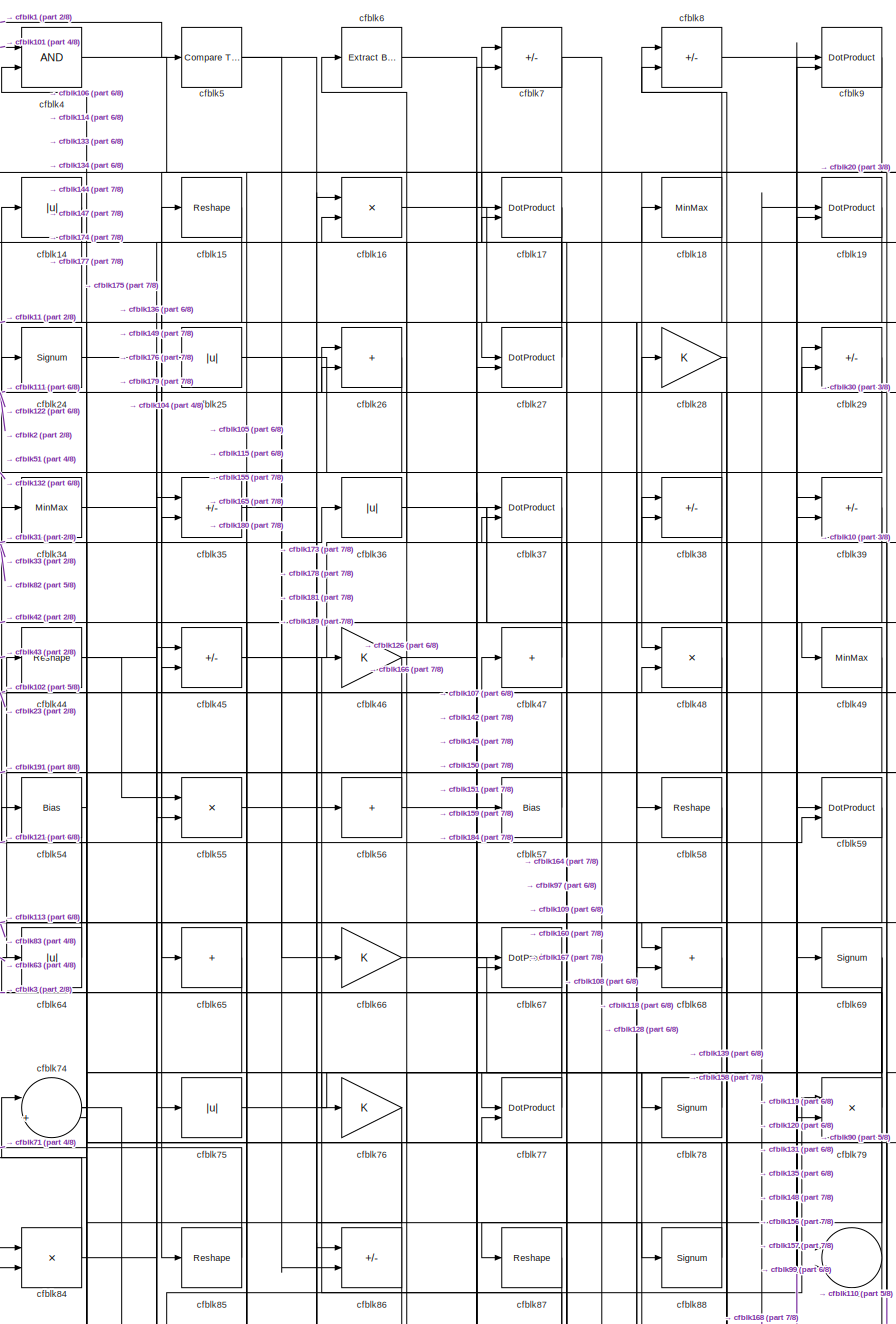
[diagram: root canvas - part 1/8, top center region]
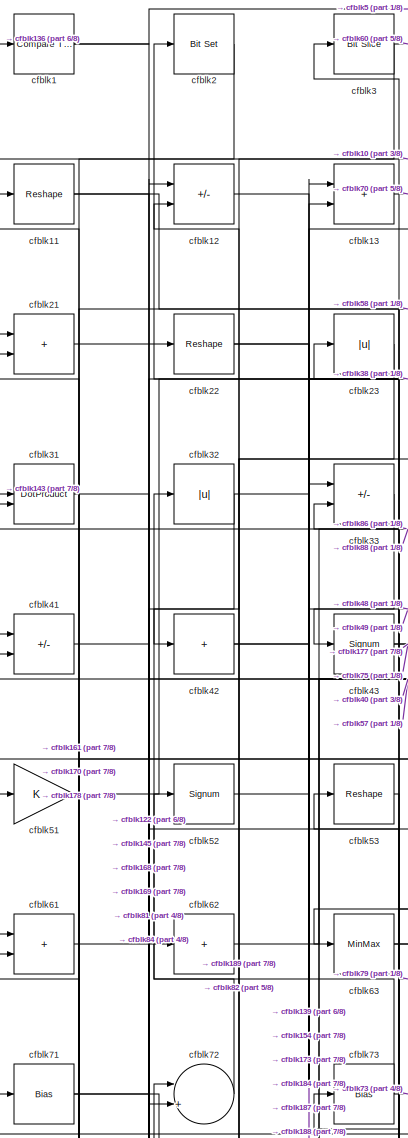
[diagram: root canvas - part 2/8, top left region]
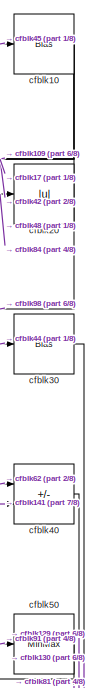
[diagram: root canvas - part 3/8, top right region]
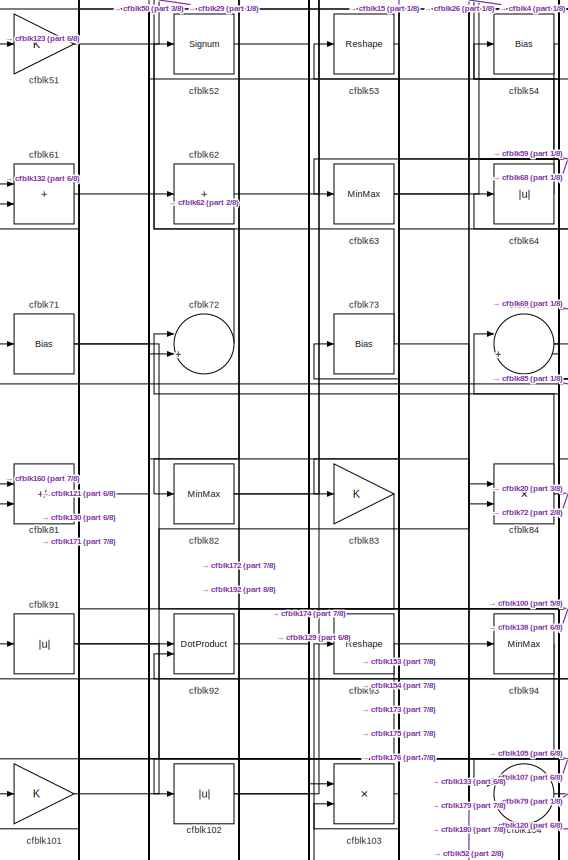
[diagram: root canvas - part 4/8, middle left region]
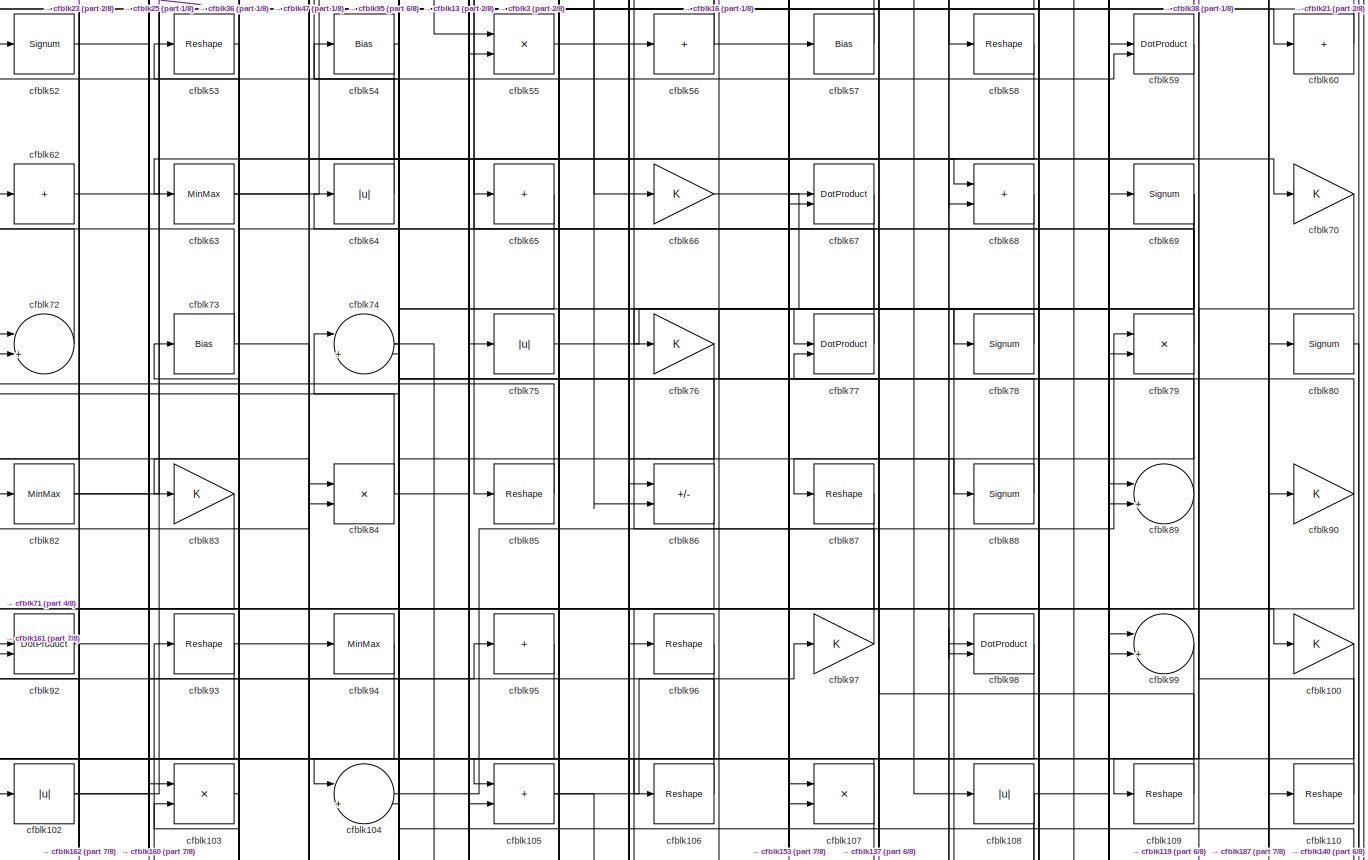
[diagram: root canvas - part 5/8, full width, middle band]
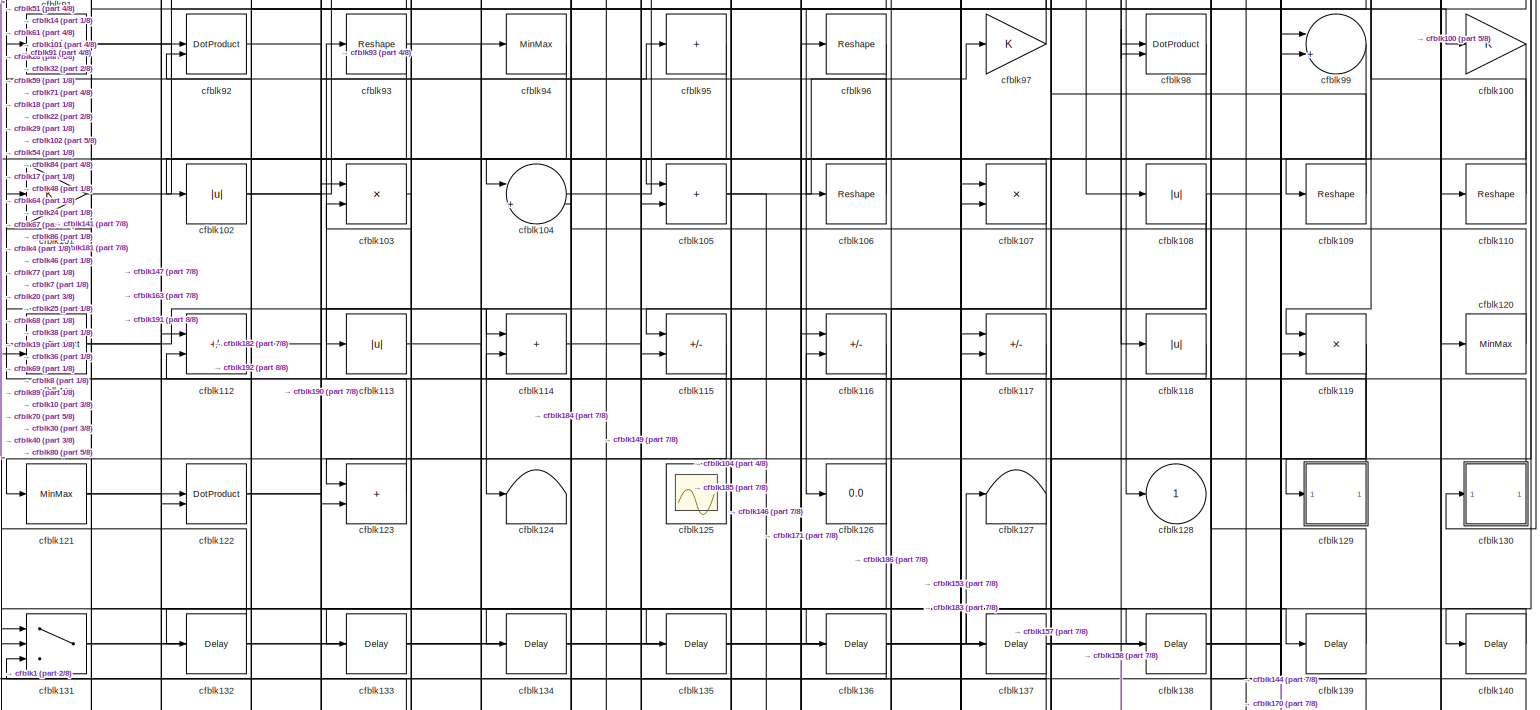
[diagram: root canvas - part 6/8, full width, middle band]
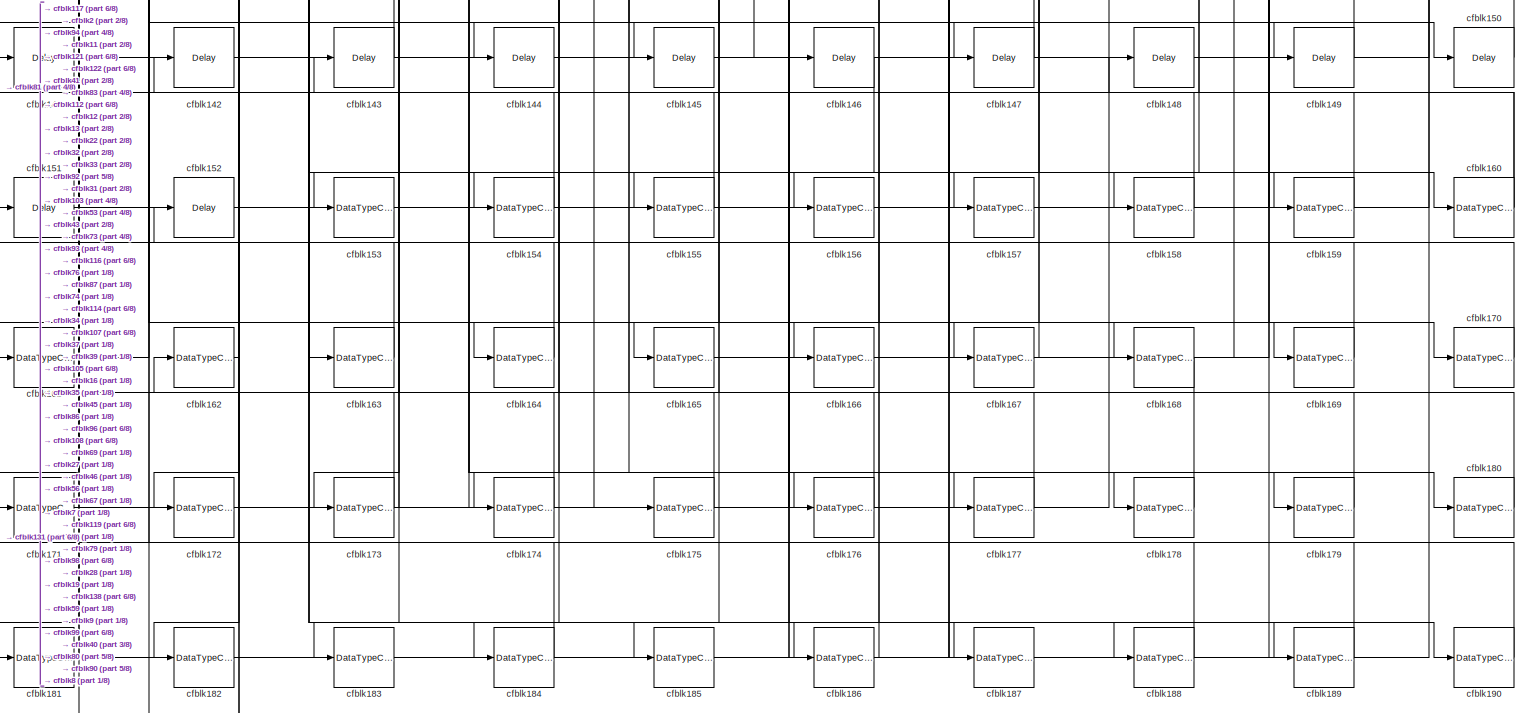
[diagram: root canvas - part 7/8, full width, bottom band]
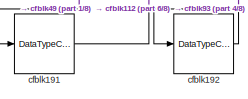
[diagram: root canvas - part 8/8, bottom left region]
MODEL slx_24e4edc9408a
KIND model
CONFIG AbsTol = auto
CONFIG EnableMultiTasking = off
CONFIG FixedStep = auto
CONFIG MaxStep = auto
CONFIG MinStep = auto
CONFIG RelTol = 1e-3
CONFIG SampleTimeConstraint = Unconstrained
CONFIG SolverName = VariableStepAuto
CONFIG StartTime = 0.0
CONFIG StopTime = 10.0
BLOCK [Reference] cfblk1  REF=hdlsllib/Logic and Bit
Operations/Compare
To Zero
  SourceBlock = hdlsllib/Logic and Bit\nOperations/Compare\nTo Zero
  SourceType = Compare To Zero
BLOCK [Bias] cfblk10
  Bias = 0.0
  SaturateOnIntegerOverflow = off
BLOCK [Gain] cfblk100
BLOCK [Gain] cfblk101
BLOCK [Abs] cfblk102
  SaturateOnIntegerOverflow = off
BLOCK [Product] cfblk103
  Inputs = */
  RndMeth = Zero
  SaturateOnIntegerOverflow = on
BLOCK [Sum] cfblk104
  Inputs = |++
BLOCK [Sum] cfblk105
  IconShape = rectangular
BLOCK [Reshape] cfblk106
BLOCK [Product] cfblk107
  Inputs = */
  RndMeth = Zero
  SaturateOnIntegerOverflow = on
BLOCK [Abs] cfblk108
  SaturateOnIntegerOverflow = off
BLOCK [Reshape] cfblk109
BLOCK [Reshape] cfblk11
BLOCK [Reshape] cfblk110
BLOCK [DotProduct] cfblk111
  OutDataTypeStr = Inherit: Inherit via internal rule
BLOCK [Sum] cfblk112
  IconShape = rectangular
  Inputs = +-
BLOCK [Abs] cfblk113
  SaturateOnIntegerOverflow = off
BLOCK [Sum] cfblk114
  IconShape = rectangular
BLOCK [Sum] cfblk115
  IconShape = rectangular
  Inputs = +-
BLOCK [Sum] cfblk116
  IconShape = rectangular
  Inputs = +-
BLOCK [Sum] cfblk117
  IconShape = rectangular
  Inputs = +-
BLOCK [Abs] cfblk118
  SaturateOnIntegerOverflow = off
BLOCK [Product] cfblk119
  Inputs = */
  RndMeth = Zero
  SaturateOnIntegerOverflow = on
BLOCK [Sum] cfblk12
  IconShape = rectangular
  Inputs = +-
BLOCK [MinMax] cfblk120
BLOCK [MinMax] cfblk121
BLOCK [DotProduct] cfblk122
  OutDataTypeStr = Inherit: Inherit via internal rule
BLOCK [Sum] cfblk123
  IconShape = rectangular
BLOCK [Terminator] cfblk124
BLOCK [Scope] cfblk125
  Floating = on
  NumInputPorts = 1
  ScopeSpecificationString = Simulink.scopes.TimeScopeBlockCfg('CurrentConfiguration', extmgr.ConfigurationSet(extmgr.Configuration('Core','General UI',true,'FigureColor',[0.156862745098039 0.156862745098039 0.156862745098039]),extmgr.Configuration('Core','Source UI',true),extmgr.Configuration('Sources','WiredSimulink',true,'DataLoggingVariableName','ScopeData1','DataLoggingSaveFormat','StructureWithTime','DataLoggingLimitDat...<+2713ch>
BLOCK [Display] cfblk126
  Decimation = 1
BLOCK [Terminator] cfblk127
BLOCK [Outport] cfblk128
  VectorParamsAs1DForOutWhenUnconnected = off
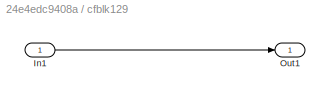
BLOCK [SubSystem] cfblk129
  LibrarySourceBlock = hdlsllib/Ports &\nSubsystems/Subsystem
BLOCK [Inport] cfblk129/In1
BLOCK [Outport] cfblk129/Out1
BLOCK [Sum] cfblk13
  IconShape = rectangular
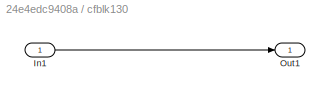
BLOCK [SubSystem] cfblk130
  LibrarySourceBlock = hdlsllib/Ports &\nSubsystems/Subsystem
BLOCK [Inport] cfblk130/In1
BLOCK [Outport] cfblk130/Out1
BLOCK [Switch] cfblk131
  InputSameDT = off
  SaturateOnIntegerOverflow = off
BLOCK [Delay] cfblk132
  InputPortMap = u0
  SampleTime = 1
BLOCK [Delay] cfblk133
  InputPortMap = u0
  SampleTime = 1
BLOCK [Delay] cfblk134
  InputPortMap = u0
  SampleTime = 1
BLOCK [Delay] cfblk135
  InputPortMap = u0
  SampleTime = 1
BLOCK [Delay] cfblk136
  InputPortMap = u0
  SampleTime = 1
BLOCK [Delay] cfblk137
  InputPortMap = u0
  SampleTime = 1
BLOCK [Delay] cfblk138
  InputPortMap = u0
  SampleTime = 1
BLOCK [Delay] cfblk139
  InputPortMap = u0
  SampleTime = 1
BLOCK [Abs] cfblk14
  SaturateOnIntegerOverflow = off
BLOCK [Delay] cfblk140
  InputPortMap = u0
  SampleTime = 1
BLOCK [Delay] cfblk141
  InputPortMap = u0
  SampleTime = 1
BLOCK [Delay] cfblk142
  InputPortMap = u0
  SampleTime = 1
BLOCK [Delay] cfblk143
  InputPortMap = u0
  SampleTime = 1
BLOCK [Delay] cfblk144
  InputPortMap = u0
  SampleTime = 1
BLOCK [Delay] cfblk145
  InputPortMap = u0
  SampleTime = 1
BLOCK [Delay] cfblk146
  InputPortMap = u0
  SampleTime = 1
BLOCK [Delay] cfblk147
  InputPortMap = u0
  SampleTime = 1
BLOCK [Delay] cfblk148
  InputPortMap = u0
  SampleTime = 1
BLOCK [Delay] cfblk149
  InputPortMap = u0
  SampleTime = 1
BLOCK [Reshape] cfblk15
BLOCK [Delay] cfblk150
  InputPortMap = u0
  SampleTime = 1
BLOCK [Delay] cfblk151
  InputPortMap = u0
  SampleTime = 1
BLOCK [Delay] cfblk152
  InputPortMap = u0
  SampleTime = 1
BLOCK [DataTypeConversion] cfblk153
  RndMeth = Floor
  SaturateOnIntegerOverflow = off
BLOCK [DataTypeConversion] cfblk154
  OutDataTypeStr = uint8
  RndMeth = Floor
  SaturateOnIntegerOverflow = off
BLOCK [DataTypeConversion] cfblk155
  OutDataTypeStr = uint8
  RndMeth = Floor
  SaturateOnIntegerOverflow = off
BLOCK [DataTypeConversion] cfblk156
  OutDataTypeStr = uint8
  RndMeth = Floor
  SaturateOnIntegerOverflow = off
BLOCK [DataTypeConversion] cfblk157
  OutDataTypeStr = uint8
  RndMeth = Floor
  SaturateOnIntegerOverflow = off
BLOCK [DataTypeConversion] cfblk158
  OutDataTypeStr = uint8
  RndMeth = Floor
  SaturateOnIntegerOverflow = off
BLOCK [DataTypeConversion] cfblk159
  OutDataTypeStr = uint8
  RndMeth = Floor
  SaturateOnIntegerOverflow = off
BLOCK [Product] cfblk16
  Inputs = */
  RndMeth = Zero
  SaturateOnIntegerOverflow = on
BLOCK [DataTypeConversion] cfblk160
  RndMeth = Floor
  SaturateOnIntegerOverflow = off
BLOCK [DataTypeConversion] cfblk161
  OutDataTypeStr = uint8
  RndMeth = Floor
  SaturateOnIntegerOverflow = off
BLOCK [DataTypeConversion] cfblk162
  OutDataTypeStr = uint8
  RndMeth = Floor
  SaturateOnIntegerOverflow = off
BLOCK [DataTypeConversion] cfblk163
  OutDataTypeStr = uint8
  RndMeth = Floor
  SaturateOnIntegerOverflow = off
BLOCK [DataTypeConversion] cfblk164
  OutDataTypeStr = uint8
  RndMeth = Floor
  SaturateOnIntegerOverflow = off
BLOCK [DataTypeConversion] cfblk165
  OutDataTypeStr = uint8
  RndMeth = Floor
  SaturateOnIntegerOverflow = off
BLOCK [DataTypeConversion] cfblk166
  OutDataTypeStr = uint8
  RndMeth = Floor
  SaturateOnIntegerOverflow = off
BLOCK [DataTypeConversion] cfblk167
  OutDataTypeStr = uint8
  RndMeth = Floor
  SaturateOnIntegerOverflow = off
BLOCK [DataTypeConversion] cfblk168
  RndMeth = Floor
  SaturateOnIntegerOverflow = off
BLOCK [DataTypeConversion] cfblk169
  OutDataTypeStr = uint8
  RndMeth = Floor
  SaturateOnIntegerOverflow = off
BLOCK [DotProduct] cfblk17
  OutDataTypeStr = Inherit: Inherit via internal rule
BLOCK [DataTypeConversion] cfblk170
  OutDataTypeStr = uint8
  RndMeth = Floor
  SaturateOnIntegerOverflow = off
BLOCK [DataTypeConversion] cfblk171
  RndMeth = Floor
  SaturateOnIntegerOverflow = off
BLOCK [DataTypeConversion] cfblk172
  OutDataTypeStr = uint8
  RndMeth = Floor
  SaturateOnIntegerOverflow = off
BLOCK [DataTypeConversion] cfblk173
  RndMeth = Floor
  SaturateOnIntegerOverflow = off
BLOCK [DataTypeConversion] cfblk174
  OutDataTypeStr = uint8
  RndMeth = Floor
  SaturateOnIntegerOverflow = off
BLOCK [DataTypeConversion] cfblk175
  OutDataTypeStr = uint8
  RndMeth = Floor
  SaturateOnIntegerOverflow = off
BLOCK [DataTypeConversion] cfblk176
  OutDataTypeStr = uint8
  RndMeth = Floor
  SaturateOnIntegerOverflow = off
BLOCK [DataTypeConversion] cfblk177
  OutDataTypeStr = uint8
  RndMeth = Floor
  SaturateOnIntegerOverflow = off
BLOCK [DataTypeConversion] cfblk178
  OutDataTypeStr = uint8
  RndMeth = Floor
  SaturateOnIntegerOverflow = off
BLOCK [DataTypeConversion] cfblk179
  OutDataTypeStr = uint8
  RndMeth = Floor
  SaturateOnIntegerOverflow = off
BLOCK [MinMax] cfblk18
BLOCK [DataTypeConversion] cfblk180
  OutDataTypeStr = uint8
  RndMeth = Floor
  SaturateOnIntegerOverflow = off
BLOCK [DataTypeConversion] cfblk181
  RndMeth = Floor
  SaturateOnIntegerOverflow = off
BLOCK [DataTypeConversion] cfblk182
  OutDataTypeStr = uint8
  RndMeth = Floor
  SaturateOnIntegerOverflow = off
BLOCK [DataTypeConversion] cfblk183
  OutDataTypeStr = uint8
  RndMeth = Floor
  SaturateOnIntegerOverflow = off
BLOCK [DataTypeConversion] cfblk184
  RndMeth = Floor
  SaturateOnIntegerOverflow = off
BLOCK [DataTypeConversion] cfblk185
  OutDataTypeStr = uint8
  RndMeth = Floor
  SaturateOnIntegerOverflow = off
BLOCK [DataTypeConversion] cfblk186
  OutDataTypeStr = uint8
  RndMeth = Floor
  SaturateOnIntegerOverflow = off
BLOCK [DataTypeConversion] cfblk187
  OutDataTypeStr = uint8
  RndMeth = Floor
  SaturateOnIntegerOverflow = off
BLOCK [DataTypeConversion] cfblk188
  OutDataTypeStr = uint8
  RndMeth = Floor
  SaturateOnIntegerOverflow = off
BLOCK [DataTypeConversion] cfblk189
  OutDataTypeStr = uint8
  RndMeth = Floor
  SaturateOnIntegerOverflow = off
BLOCK [DotProduct] cfblk19
  OutDataTypeStr = Inherit: Inherit via internal rule
BLOCK [DataTypeConversion] cfblk190
  OutDataTypeStr = uint8
  RndMeth = Floor
  SaturateOnIntegerOverflow = off
BLOCK [DataTypeConversion] cfblk191
  OutDataTypeStr = uint8
  RndMeth = Floor
  SaturateOnIntegerOverflow = off
BLOCK [DataTypeConversion] cfblk192
  OutDataTypeStr = uint8
  RndMeth = Floor
  SaturateOnIntegerOverflow = off
BLOCK [Reference] cfblk2  REF=simulink/Logic and Bit
Operations/Bit Set
  LibrarySourceBlock = hdlsllib/Logic and Bit\nOperations/Bit Set
  SourceBlock = simulink/Logic and Bit\nOperations/Bit Set
  SourceType = Bit Set
BLOCK [Abs] cfblk20
  SaturateOnIntegerOverflow = off
BLOCK [Sum] cfblk21
  IconShape = rectangular
BLOCK [Reshape] cfblk22
BLOCK [Abs] cfblk23
  SaturateOnIntegerOverflow = off
BLOCK [Signum] cfblk24
BLOCK [Abs] cfblk25
  SaturateOnIntegerOverflow = off
BLOCK [Sum] cfblk26
  IconShape = rectangular
BLOCK [DotProduct] cfblk27
  OutDataTypeStr = Inherit: Inherit via internal rule
BLOCK [Gain] cfblk28
BLOCK [Sum] cfblk29
  IconShape = rectangular
  Inputs = +-
BLOCK [Reference] cfblk3  REF=hdlsllib/Logic and Bit
Operations/Bit Slice
  SourceBlock = hdlsllib/Logic and Bit\nOperations/Bit Slice
  SourceType = Bit Slice
BLOCK [Bias] cfblk30
  Bias = 0.0
  SaturateOnIntegerOverflow = off
BLOCK [DotProduct] cfblk31
  OutDataTypeStr = Inherit: Inherit via internal rule
BLOCK [Abs] cfblk32
  SaturateOnIntegerOverflow = off
BLOCK [Sum] cfblk33
  IconShape = rectangular
  Inputs = +-
BLOCK [MinMax] cfblk34
BLOCK [Sum] cfblk35
  IconShape = rectangular
  Inputs = +-
BLOCK [Abs] cfblk36
  SaturateOnIntegerOverflow = off
BLOCK [DotProduct] cfblk37
  OutDataTypeStr = Inherit: Inherit via internal rule
BLOCK [Sum] cfblk38
  IconShape = rectangular
  Inputs = +-
BLOCK [Sum] cfblk39
  IconShape = rectangular
  Inputs = +-
BLOCK [Logic] cfblk4
  AllPortsSameDT = off
  OutDataTypeStr = boolean
BLOCK [Sum] cfblk40
  IconShape = rectangular
  Inputs = +-
BLOCK [Sum] cfblk41
  IconShape = rectangular
  Inputs = +-
BLOCK [Sum] cfblk42
  IconShape = rectangular
  Inputs = +
BLOCK [Signum] cfblk43
BLOCK [Reshape] cfblk44
BLOCK [Sum] cfblk45
  IconShape = rectangular
  Inputs = +-
BLOCK [Gain] cfblk46
BLOCK [Sum] cfblk47
  IconShape = rectangular
  Inputs = +
BLOCK [Product] cfblk48
  Inputs = */
  RndMeth = Zero
  SaturateOnIntegerOverflow = on
BLOCK [MinMax] cfblk49
BLOCK [Reference] cfblk5  REF=hdlsllib/Logic and Bit
Operations/Compare
To Zero
  SourceBlock = hdlsllib/Logic and Bit\nOperations/Compare\nTo Zero
  SourceType = Compare To Zero
BLOCK [MinMax] cfblk50
BLOCK [Gain] cfblk51
BLOCK [Signum] cfblk52
BLOCK [Reshape] cfblk53
BLOCK [Bias] cfblk54
  Bias = 0.0
  SaturateOnIntegerOverflow = off
BLOCK [Product] cfblk55
  Inputs = */
  RndMeth = Zero
  SaturateOnIntegerOverflow = on
BLOCK [Sum] cfblk56
  IconShape = rectangular
  Inputs = +
BLOCK [Bias] cfblk57
  Bias = 0.0
  SaturateOnIntegerOverflow = off
BLOCK [Reshape] cfblk58
BLOCK [DotProduct] cfblk59
  OutDataTypeStr = Inherit: Inherit via internal rule
BLOCK [Reference] cfblk6  REF=simulink/Logic and Bit
Operations/Extract Bits
  LibrarySourceBlock = hdlsllib/Logic and Bit\nOperations/Extract Bits
  SourceBlock = simulink/Logic and Bit\nOperations/Extract Bits
  SourceType = Extract Bits
BLOCK [Sum] cfblk60
  IconShape = rectangular
  Inputs = +
BLOCK [Sum] cfblk61
  IconShape = rectangular
BLOCK [Sum] cfblk62
  IconShape = rectangular
  Inputs = +
BLOCK [MinMax] cfblk63
BLOCK [Abs] cfblk64
  SaturateOnIntegerOverflow = off
BLOCK [Sum] cfblk65
  IconShape = rectangular
  Inputs = +
BLOCK [Gain] cfblk66
BLOCK [DotProduct] cfblk67
  OutDataTypeStr = Inherit: Inherit via internal rule
BLOCK [Sum] cfblk68
  IconShape = rectangular
BLOCK [Signum] cfblk69
BLOCK [Sum] cfblk7
  IconShape = rectangular
  Inputs = +-
BLOCK [Gain] cfblk70
BLOCK [Bias] cfblk71
  Bias = 0.0
  SaturateOnIntegerOverflow = off
BLOCK [Sum] cfblk72
  Inputs = |++
BLOCK [Bias] cfblk73
  Bias = 0.0
  SaturateOnIntegerOverflow = off
BLOCK [Sum] cfblk74
  Inputs = |++
BLOCK [Abs] cfblk75
  SaturateOnIntegerOverflow = off
BLOCK [Gain] cfblk76
BLOCK [DotProduct] cfblk77
  OutDataTypeStr = Inherit: Inherit via internal rule
BLOCK [Signum] cfblk78
BLOCK [Product] cfblk79
  Inputs = */
  RndMeth = Zero
  SaturateOnIntegerOverflow = on
BLOCK [Sum] cfblk8
  IconShape = rectangular
  Inputs = +-
BLOCK [Signum] cfblk80
BLOCK [Sum] cfblk81
  IconShape = rectangular
  Inputs = +-
BLOCK [MinMax] cfblk82
BLOCK [Gain] cfblk83
BLOCK [Product] cfblk84
  Inputs = */
  RndMeth = Zero
  SaturateOnIntegerOverflow = on
BLOCK [Reshape] cfblk85
BLOCK [Sum] cfblk86
  IconShape = rectangular
  Inputs = +-
BLOCK [Reshape] cfblk87
BLOCK [Signum] cfblk88
BLOCK [Sum] cfblk89
  Inputs = |++
BLOCK [DotProduct] cfblk9
  OutDataTypeStr = Inherit: Inherit via internal rule
BLOCK [Gain] cfblk90
BLOCK [Abs] cfblk91
  SaturateOnIntegerOverflow = off
BLOCK [DotProduct] cfblk92
  OutDataTypeStr = Inherit: Inherit via internal rule
BLOCK [Reshape] cfblk93
BLOCK [MinMax] cfblk94
BLOCK [Sum] cfblk95
  IconShape = rectangular
  Inputs = +
BLOCK [Reshape] cfblk96
BLOCK [Gain] cfblk97
BLOCK [DotProduct] cfblk98
  OutDataTypeStr = Inherit: Inherit via internal rule
BLOCK [Sum] cfblk99
  Inputs = |++
LINE cfblk100:1 -> cfblk137:1
LINE cfblk101:1 -> cfblk4:1
NET cfblk102:1 -> cfblk47:1, cfblk95:1
LINE cfblk103:1 -> cfblk173:1
LINE cfblk104:1 -> cfblk79:1
NET cfblk105:1 -> cfblk146:1, cfblk97:1
LINE cfblk106:1 -> cfblk64:1
NET cfblk107:1 -> cfblk104:1, cfblk185:1
NET cfblk108:1 -> cfblk123:2, cfblk186:1, cfblk69:1
LINE cfblk109:1 -> cfblk77:2
NET cfblk10:1 -> cfblk109:1, cfblk42:1, cfblk48:1
LINE cfblk110:1 -> cfblk38:1
NET cfblk111:1 -> cfblk124:1, cfblk26:1
LINE cfblk112:1 -> cfblk190:1
LINE cfblk113:1 -> cfblk135:1
LINE cfblk114:1 -> cfblk149:1
LINE cfblk115:1 -> cfblk123:1
LINE cfblk116:1 -> cfblk184:1
LINE cfblk117:1 -> cfblk181:1
LINE cfblk118:1 -> cfblk114:2
NET cfblk119:1 -> cfblk141:1, cfblk157:1
NET cfblk11:1 -> cfblk145:1, cfblk58:1
LINE cfblk120:1 -> cfblk91:1
NET cfblk121:1 -> cfblk101:1, cfblk147:1, cfblk59:2
NET cfblk122:1 -> cfblk18:1, cfblk29:2
LINE cfblk123:1 -> cfblk51:1
LINE cfblk129/In1:1 -> cfblk129/Out1:1
LINE cfblk129:1 -> cfblk93:1
LINE cfblk12:1 -> cfblk187:1
LINE cfblk130/In1:1 -> cfblk130/Out1:1
LINE cfblk130:1 -> cfblk61:2
NET cfblk131:1 -> cfblk127:1, cfblk89:2
LINE cfblk132:1 -> cfblk61:1
LINE cfblk133:1 -> cfblk84:1
LINE cfblk134:1 -> cfblk19:2
LINE cfblk135:1 -> cfblk89:1
LINE cfblk136:1 -> cfblk1:1
LINE cfblk137:1 -> cfblk131:3
LINE cfblk138:1 -> cfblk170:1
LINE cfblk139:1 -> cfblk38:2
LINE cfblk13:1 -> cfblk70:1
LINE cfblk140:1 -> cfblk131:2
LINE cfblk141:1 -> cfblk40:2
LINE cfblk142:1 -> cfblk7:2
LINE cfblk143:1 -> cfblk31:1
LINE cfblk144:1 -> cfblk99:1
LINE cfblk145:1 -> cfblk67:1
LINE cfblk146:1 -> cfblk183:1
LINE cfblk147:1 -> cfblk74:1
LINE cfblk148:1 -> cfblk59:1
LINE cfblk149:1 -> cfblk45:1
LINE cfblk14:1 -> cfblk111:1
LINE cfblk150:1 -> cfblk8:2
LINE cfblk151:1 -> cfblk27:2
LINE cfblk152:1 -> cfblk163:1
NET cfblk153:1 -> cfblk107:2, cfblk156:1, cfblk90:1
LINE cfblk154:1 -> cfblk53:1
LINE cfblk155:1 -> cfblk142:1
LINE cfblk156:1 -> cfblk39:1
LINE cfblk157:1 -> cfblk39:2
LINE cfblk158:1 -> cfblk98:1
LINE cfblk159:1 -> cfblk28:1
LINE cfblk15:1 -> cfblk63:1
NET cfblk160:1 -> cfblk17:2, cfblk81:1
LINE cfblk161:1 -> cfblk92:1
LINE cfblk162:1 -> cfblk92:2
LINE cfblk163:1 -> cfblk122:1
LINE cfblk164:1 -> cfblk152:1
LINE cfblk165:1 -> cfblk9:1
LINE cfblk166:1 -> cfblk37:1
LINE cfblk167:1 -> cfblk37:2
NET cfblk168:1 -> cfblk162:1, cfblk19:1
LINE cfblk169:1 -> cfblk41:1
LINE cfblk16:1 -> cfblk110:1
LINE cfblk170:1 -> cfblk41:2
NET cfblk171:1 -> cfblk148:1, cfblk96:1
LINE cfblk172:1 -> cfblk94:1
NET cfblk173:1 -> cfblk143:1, cfblk33:1, cfblk86:1
LINE cfblk174:1 -> cfblk103:1
LINE cfblk175:1 -> cfblk103:2
LINE cfblk176:1 -> cfblk73:1
LINE cfblk177:1 -> cfblk34:1
LINE cfblk178:1 -> cfblk11:1
LINE cfblk179:1 -> cfblk35:1
NET cfblk17:1 -> cfblk133:1, cfblk134:1
LINE cfblk180:1 -> cfblk35:2
NET cfblk181:1 -> cfblk151:1, cfblk16:1
LINE cfblk182:1 -> cfblk117:1
LINE cfblk183:1 -> cfblk117:2
NET cfblk184:1 -> cfblk13:1, cfblk67:2, cfblk9:2
LINE cfblk185:1 -> cfblk116:1
LINE cfblk186:1 -> cfblk116:2
LINE cfblk187:1 -> cfblk80:1
LINE cfblk188:1 -> cfblk12:1
LINE cfblk189:1 -> cfblk12:2
NET cfblk18:1 -> cfblk87:1, cfblk8:1
LINE cfblk190:1 -> cfblk131:1
LINE cfblk191:1 -> cfblk112:1
LINE cfblk192:1 -> cfblk112:2
LINE cfblk19:1 -> cfblk27:1
NET cfblk1:1 -> cfblk5:1, cfblk72:2
NET cfblk20:1 -> cfblk17:1, cfblk98:2
LINE cfblk21:1 -> cfblk22:1
NET cfblk22:1 -> cfblk139:1, cfblk188:1
LINE cfblk23:1 -> cfblk82:1
LINE cfblk24:1 -> cfblk136:1
NET cfblk25:1 -> cfblk118:1, cfblk86:2
LINE cfblk26:1 -> cfblk115:1
LINE cfblk27:1 -> cfblk7:1
LINE cfblk28:1 -> cfblk158:1
LINE cfblk29:1 -> cfblk132:1
LINE cfblk2:1 -> cfblk161:1
LINE cfblk30:1 -> cfblk130:1
LINE cfblk31:1 -> cfblk169:1
NET cfblk32:1 -> cfblk122:2, cfblk154:1
LINE cfblk33:1 -> cfblk43:1
LINE cfblk34:1 -> cfblk176:1
LINE cfblk35:1 -> cfblk178:1
NET cfblk36:1 -> cfblk119:2, cfblk120:1
LINE cfblk37:1 -> cfblk165:1
NET cfblk38:1 -> cfblk2:1, cfblk55:2
LINE cfblk39:1 -> cfblk155:1
NET cfblk3:1 -> cfblk21:1, cfblk60:1
LINE cfblk40:1 -> cfblk129:1
LINE cfblk41:1 -> cfblk168:1
NET cfblk42:1 -> cfblk48:2, cfblk49:1
NET cfblk43:1 -> cfblk177:1, cfblk75:1
NET cfblk44:1 -> cfblk30:1, cfblk55:1
NET cfblk45:1 -> cfblk10:1, cfblk189:1
NET cfblk46:1 -> cfblk159:1, cfblk174:1
LINE cfblk47:1 -> cfblk6:1
LINE cfblk48:1 -> cfblk114:1
LINE cfblk49:1 -> cfblk191:1
LINE cfblk4:1 -> cfblk107:1
LINE cfblk50:1 -> cfblk81:2
LINE cfblk51:1 -> cfblk29:1
LINE cfblk52:1 -> cfblk13:2
LINE cfblk53:1 -> cfblk153:1
NET cfblk54:1 -> cfblk113:1, cfblk24:1
LINE cfblk55:1 -> cfblk56:1
NET cfblk56:1 -> cfblk150:1, cfblk45:2
LINE cfblk57:1 -> cfblk23:1
LINE cfblk58:1 -> cfblk68:2
LINE cfblk59:1 -> cfblk83:1
NET cfblk5:1 -> cfblk66:1, cfblk88:1
LINE cfblk60:1 -> cfblk21:2
LINE cfblk61:1 -> cfblk84:2
LINE cfblk62:1 -> cfblk40:1
NET cfblk63:1 -> cfblk26:2, cfblk68:1
LINE cfblk64:1 -> cfblk14:1
LINE cfblk65:1 -> cfblk74:2
LINE cfblk66:1 -> cfblk79:2
LINE cfblk67:1 -> cfblk105:1
LINE cfblk68:1 -> cfblk128:1
NET cfblk69:1 -> cfblk104:2, cfblk166:1, cfblk77:1
LINE cfblk6:1 -> cfblk57:1
LINE cfblk70:1 -> cfblk119:1
NET cfblk71:1 -> cfblk100:1, cfblk138:1
LINE cfblk72:1 -> cfblk32:1
NET cfblk73:1 -> cfblk180:1, cfblk52:1
NET cfblk74:1 -> cfblk175:1, cfblk44:1
LINE cfblk75:1 -> cfblk78:1
LINE cfblk76:1 -> cfblk144:1
LINE cfblk77:1 -> cfblk15:1
LINE cfblk78:1 -> cfblk76:1
NET cfblk79:1 -> cfblk167:1, cfblk3:1, cfblk54:1
NET cfblk7:1 -> cfblk108:1, cfblk65:1
LINE cfblk80:1 -> cfblk140:1
LINE cfblk81:1 -> cfblk62:1
NET cfblk82:1 -> cfblk25:1, cfblk36:1
LINE cfblk83:1 -> cfblk172:1
NET cfblk84:1 -> cfblk20:1, cfblk72:1
LINE cfblk85:1 -> cfblk71:1
NET cfblk86:1 -> cfblk126:1, cfblk33:2
LINE cfblk87:1 -> cfblk164:1
LINE cfblk88:1 -> cfblk31:2
NET cfblk89:1 -> cfblk121:1, cfblk4:2
LINE cfblk8:1 -> cfblk99:2
NET cfblk90:1 -> cfblk102:1, cfblk16:2
NET cfblk91:1 -> cfblk105:2, cfblk50:1
LINE cfblk92:1 -> cfblk160:1
NET cfblk93:1 -> cfblk179:1, cfblk192:1
LINE cfblk94:1 -> cfblk171:1
LINE cfblk95:1 -> cfblk115:2
LINE cfblk96:1 -> cfblk106:1
LINE cfblk97:1 -> cfblk46:1
LINE cfblk98:1 -> cfblk111:2
LINE cfblk99:1 -> cfblk182:1
LINE cfblk9:1 -> cfblk85:1
note: NET lines group one-source signal fan-out (src -> all destinations, sorted); 1:1 wires keep LINE
